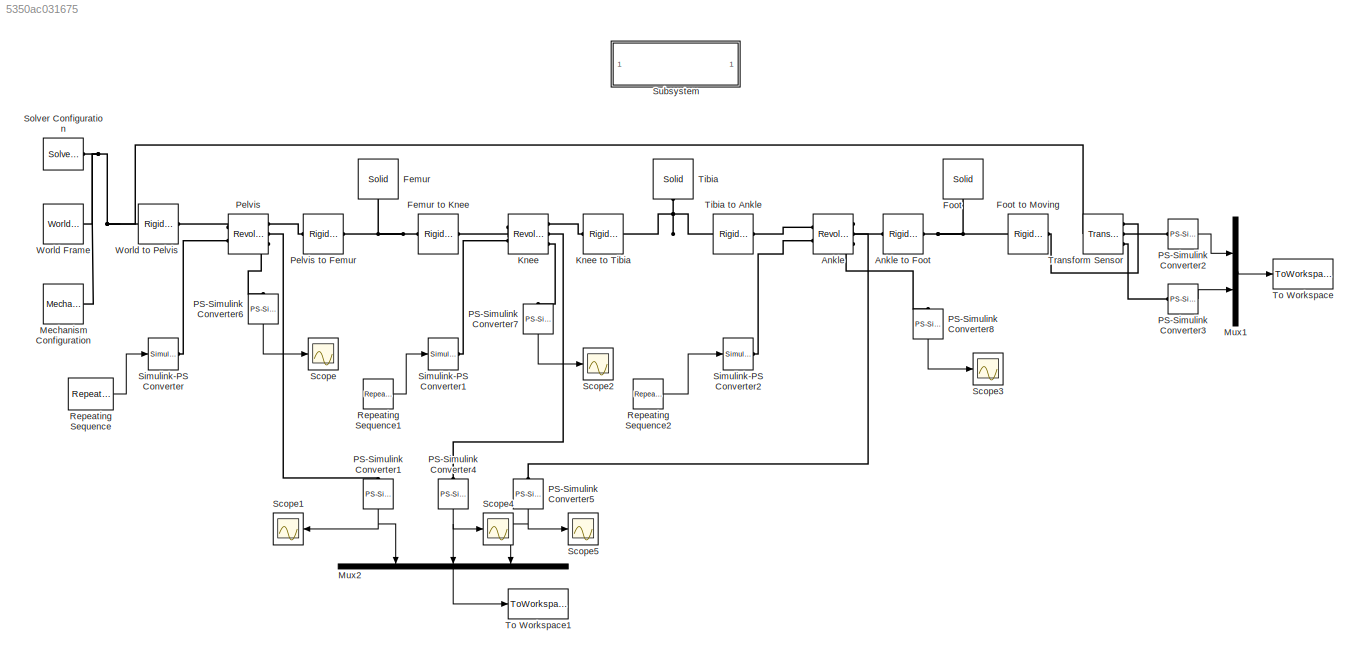
MODEL slx_5350ac031675
KIND model
CONFIG AbsTol = auto
CONFIG EnableMultiTasking = off
CONFIG FixedStep = auto
CONFIG MaxStep = auto
CONFIG MinStep = auto
CONFIG RelTol = 1e-3
CONFIG SampleTimeConstraint = Unconstrained
CONFIG Solver = VariableStepAuto
CONFIG SolverName = VariableStepAuto
CONFIG StartTime = 0.0
CONFIG StopTime = 10.0
BLOCK [Reference] Ankle  REF=sm_lib/Joints/Revolute Joint
  Ports = [0, 0, 0, 0, 0, 2, 3]
  SourceBlock = sm_lib/Joints/Revolute Joint
  SourceProductBaseCode = MS
  SourceProductName = Simscape Multibody
  SourceType = Revolute Joint
BLOCK [Reference] Ankle to Foot  REF=sm_lib/Frames and
Transforms/Rigid
Transform
  Ports = [0, 0, 0, 0, 0, 1, 1]
  SourceBlock = sm_lib/Frames and\nTransforms/Rigid\nTransform
  SourceProductBaseCode = MS
  SourceProductName = Simscape Multibody
  SourceType = Rigid\nTransform
BLOCK [Reference] Femur  REF=sm_lib/Body Elements/Solid
  Ports = [0, 0, 0, 0, 0, 0, 1]
  SourceBlock = sm_lib/Body Elements/Solid
  SourceProductBaseCode = MS
  SourceProductName = Simscape Multibody
  SourceType = Solid
BLOCK [Reference] Femur to Knee  REF=sm_lib/Frames and
Transforms/Rigid
Transform
  Ports = [0, 0, 0, 0, 0, 1, 1]
  SourceBlock = sm_lib/Frames and\nTransforms/Rigid\nTransform
  SourceProductBaseCode = MS
  SourceProductName = Simscape Multibody
  SourceType = Rigid\nTransform
BLOCK [Reference] Foot  REF=sm_lib/Body Elements/Solid
  Ports = [0, 0, 0, 0, 0, 0, 1]
  SourceBlock = sm_lib/Body Elements/Solid
  SourceProductBaseCode = MS
  SourceProductName = Simscape Multibody
  SourceType = Solid
BLOCK [Reference] Foot to Moving  REF=sm_lib/Frames and
Transforms/Rigid
Transform
  Ports = [0, 0, 0, 0, 0, 1, 1]
  SourceBlock = sm_lib/Frames and\nTransforms/Rigid\nTransform
  SourceProductBaseCode = MS
  SourceProductName = Simscape Multibody
  SourceType = Rigid\nTransform
BLOCK [Reference] Knee  REF=sm_lib/Joints/Revolute Joint
  Ports = [0, 0, 0, 0, 0, 2, 3]
  SourceBlock = sm_lib/Joints/Revolute Joint
  SourceProductBaseCode = MS
  SourceProductName = Simscape Multibody
  SourceType = Revolute Joint
BLOCK [Reference] Knee to Tibia  REF=sm_lib/Frames and
Transforms/Rigid
Transform
  Ports = [0, 0, 0, 0, 0, 1, 1]
  SourceBlock = sm_lib/Frames and\nTransforms/Rigid\nTransform
  SourceProductBaseCode = MS
  SourceProductName = Simscape Multibody
  SourceType = Rigid\nTransform
BLOCK [Reference] Mechanism Configuration  REF=sm_lib/Utilities/Mechanism
Configuration
  Ports = [0, 0, 0, 0, 0, 0, 1]
  SourceBlock = sm_lib/Utilities/Mechanism\nConfiguration
  SourceProductBaseCode = MS
  SourceProductName = Simscape Multibody
  SourceType = Mechanism\nConfiguration
BLOCK [Mux] Mux1
  DisplayOption = bar
  Inputs = 2
  Ports = [2, 1]
BLOCK [Mux] Mux2
  DisplayOption = bar
  Inputs = 3
  Ports = [3, 1]
BLOCK [Reference] PS-Simulink Converter1  REF=nesl_utility/PS-Simulink
Converter
  Ports = [0, 1, 0, 0, 0, 1]
  SourceBlock = nesl_utility/PS-Simulink\nConverter
  SourceProductBaseCode = SS
  SourceProductName = Simscape
  SourceType = PS-Simulink\nConverter
BLOCK [Reference] PS-Simulink Converter2  REF=nesl_utility/PS-Simulink
Converter
  Ports = [0, 1, 0, 0, 0, 1]
  SourceBlock = nesl_utility/PS-Simulink\nConverter
  SourceProductBaseCode = SS
  SourceProductName = Simscape
  SourceType = PS-Simulink\nConverter
BLOCK [Reference] PS-Simulink Converter3  REF=nesl_utility/PS-Simulink
Converter
  Ports = [0, 1, 0, 0, 0, 1]
  SourceBlock = nesl_utility/PS-Simulink\nConverter
  SourceProductBaseCode = SS
  SourceProductName = Simscape
  SourceType = PS-Simulink\nConverter
BLOCK [Reference] PS-Simulink Converter4  REF=nesl_utility/PS-Simulink
Converter
  Ports = [0, 1, 0, 0, 0, 1]
  SourceBlock = nesl_utility/PS-Simulink\nConverter
  SourceProductBaseCode = SS
  SourceProductName = Simscape
  SourceType = PS-Simulink\nConverter
BLOCK [Reference] PS-Simulink Converter5  REF=nesl_utility/PS-Simulink
Converter
  Ports = [0, 1, 0, 0, 0, 1]
  SourceBlock = nesl_utility/PS-Simulink\nConverter
  SourceProductBaseCode = SS
  SourceProductName = Simscape
  SourceType = PS-Simulink\nConverter
BLOCK [Reference] PS-Simulink Converter6  REF=nesl_utility/PS-Simulink
Converter
  Ports = [0, 1, 0, 0, 0, 1]
  SourceBlock = nesl_utility/PS-Simulink\nConverter
  SourceProductBaseCode = SS
  SourceProductName = Simscape
  SourceType = PS-Simulink\nConverter
BLOCK [Reference] PS-Simulink Converter7  REF=nesl_utility/PS-Simulink
Converter
  Ports = [0, 1, 0, 0, 0, 1]
  SourceBlock = nesl_utility/PS-Simulink\nConverter
  SourceProductBaseCode = SS
  SourceProductName = Simscape
  SourceType = PS-Simulink\nConverter
BLOCK [Reference] PS-Simulink Converter8  REF=nesl_utility/PS-Simulink
Converter
  Ports = [0, 1, 0, 0, 0, 1]
  SourceBlock = nesl_utility/PS-Simulink\nConverter
  SourceProductBaseCode = SS
  SourceProductName = Simscape
  SourceType = PS-Simulink\nConverter
BLOCK [Reference] Pelvis  REF=sm_lib/Joints/Revolute Joint
  Ports = [0, 0, 0, 0, 0, 2, 3]
  SourceBlock = sm_lib/Joints/Revolute Joint
  SourceProductBaseCode = MS
  SourceProductName = Simscape Multibody
  SourceType = Revolute Joint
BLOCK [Reference] Pelvis to Femur  REF=sm_lib/Frames and
Transforms/Rigid
Transform
  Ports = [0, 0, 0, 0, 0, 1, 1]
  SourceBlock = sm_lib/Frames and\nTransforms/Rigid\nTransform
  SourceProductBaseCode = MS
  SourceProductName = Simscape Multibody
  SourceType = Rigid\nTransform
BLOCK [Reference] Repeating Sequence  REF=simulink/Sources/Repeating
Sequence
  Ports = [0, 1]
  SourceBlock = simulink/Sources/Repeating\nSequence
  SourceProductBaseCode = SL
  SourceProductName = Simulink
  SourceType = Repeating table
BLOCK [Reference] Repeating Sequence1  REF=simulink/Sources/Repeating
Sequence
  Ports = [0, 1]
  SourceBlock = simulink/Sources/Repeating\nSequence
  SourceProductBaseCode = SL
  SourceProductName = Simulink
  SourceType = Repeating table
BLOCK [Reference] Repeating Sequence2  REF=simulink/Sources/Repeating
Sequence
  Ports = [0, 1]
  SourceBlock = simulink/Sources/Repeating\nSequence
  SourceProductBaseCode = SL
  SourceProductName = Simulink
  SourceType = Repeating table
BLOCK [Scope] Scope
  Floating = off
  NumInputPorts = 1
  Ports = [1]
  ScopeSpecificationString = Simulink.scopes.TimeScopeBlockCfg('CurrentConfiguration', extmgr.ConfigurationSet(extmgr.Configuration('Core','General UI',true),extmgr.Configuration('Core','Source UI',true),extmgr.Configuration('Sources','WiredSimulink',true),extmgr.Configuration('Visuals','Time Domain',true,'SerializedDisplays',{struct('MinYLimReal','-150441544.17008','MaxYLimReal','16815517.03619','YLabelReal','','MinYLimMag',...<+1486ch>
BLOCK [Scope] Scope1
  Floating = off
  NumInputPorts = 1
  Ports = [1]
  ScopeSpecificationString = Simulink.scopes.TimeScopeBlockCfg('CurrentConfiguration', extmgr.ConfigurationSet(extmgr.Configuration('Core','General UI',true),extmgr.Configuration('Core','Source UI',true),extmgr.Configuration('Sources','WiredSimulink',true,'DataLoggingVariableName','ScopeData1'),extmgr.Configuration('Visuals','Time Domain',true,'SerializedDisplays',{struct('MinYLimReal','-16815517.03619','MaxYLimReal','1504415...<+1468ch>
BLOCK [Scope] Scope2
  Floating = off
  NumInputPorts = 1
  Ports = [1]
  ScopeSpecificationString = Simulink.scopes.TimeScopeBlockCfg('CurrentConfiguration', extmgr.ConfigurationSet(extmgr.Configuration('Core','General UI',true),extmgr.Configuration('Core','Source UI',true),extmgr.Configuration('Sources','WiredSimulink',true,'DataLoggingVariableName','ScopeData2'),extmgr.Configuration('Visuals','Time Domain',true,'SerializedDisplays',{struct('MinYLimReal','-611378504.7371','MaxYLimReal','6798409...<+1521ch>
BLOCK [Scope] Scope3
  Floating = off
  NumInputPorts = 1
  Ports = [1]
  ScopeSpecificationString = Simulink.scopes.TimeScopeBlockCfg('CurrentConfiguration', extmgr.ConfigurationSet(extmgr.Configuration('Core','General UI',true),extmgr.Configuration('Core','Source UI',true),extmgr.Configuration('Sources','WiredSimulink',true,'DataLoggingVariableName','ScopeData3'),extmgr.Configuration('Visuals','Time Domain',true,'SerializedDisplays',{struct('MinYLimReal','-516698912.15701','MaxYLimReal','574302...<+1526ch>
BLOCK [Scope] Scope4
  Floating = off
  NumInputPorts = 1
  Ports = [1]
  ScopeSpecificationString = Simulink.scopes.TimeScopeBlockCfg('CurrentConfiguration', extmgr.ConfigurationSet(extmgr.Configuration('Core','General UI',true),extmgr.Configuration('Core','Source UI',true),extmgr.Configuration('Sources','WiredSimulink',true,'DataLoggingVariableName','ScopeData4'),extmgr.Configuration('Visuals','Time Domain',true,'SerializedDisplays',{struct('MinYLimReal','-67984099.47412','MaxYLimReal','6113785...<+1464ch>
BLOCK [Scope] Scope5
  Floating = off
  NumInputPorts = 1
  Ports = [1]
  ScopeSpecificationString = Simulink.scopes.TimeScopeBlockCfg('CurrentConfiguration', extmgr.ConfigurationSet(extmgr.Configuration('Core','General UI',true),extmgr.Configuration('Core','Source UI',true),extmgr.Configuration('Sources','WiredSimulink',true,'DataLoggingVariableName','ScopeData5'),extmgr.Configuration('Visuals','Time Domain',true,'SerializedDisplays',{struct('MinYLimReal','-57430255.04395','MaxYLimReal','5166989...<+1468ch>
BLOCK [Reference] Simulink-PS Converter  REF=nesl_utility/Simulink-PS
Converter
  Ports = [1, 0, 0, 0, 0, 0, 1]
  SourceBlock = nesl_utility/Simulink-PS\nConverter
  SourceProductBaseCode = SS
  SourceProductName = Simscape
  SourceType = Simulink-PS\nConverter
BLOCK [Reference] Simulink-PS Converter1  REF=nesl_utility/Simulink-PS
Converter
  Ports = [1, 0, 0, 0, 0, 0, 1]
  SourceBlock = nesl_utility/Simulink-PS\nConverter
  SourceProductBaseCode = SS
  SourceProductName = Simscape
  SourceType = Simulink-PS\nConverter
BLOCK [Reference] Simulink-PS Converter2  REF=nesl_utility/Simulink-PS
Converter
  Ports = [1, 0, 0, 0, 0, 0, 1]
  SourceBlock = nesl_utility/Simulink-PS\nConverter
  SourceProductBaseCode = SS
  SourceProductName = Simscape
  SourceType = Simulink-PS\nConverter
BLOCK [Reference] Solver Configuration  REF=nesl_utility/Solver
Configuration
  Ports = [0, 0, 0, 0, 0, 0, 1]
  SourceBlock = nesl_utility/Solver\nConfiguration
  SourceProductBaseCode = SS
  SourceProductName = Simscape
  SourceType = Solver\nConfiguration
BLOCK [SubSystem] Subsystem
  OpenFcn = open_system('sm_lib')
  Ports = []
  RequestExecContextInheritance = off
  ShowPortLabels = none
BLOCK [Reference] Tibia  REF=sm_lib/Body Elements/Solid
  Ports = [0, 0, 0, 0, 0, 0, 1]
  SourceBlock = sm_lib/Body Elements/Solid
  SourceProductBaseCode = MS
  SourceProductName = Simscape Multibody
  SourceType = Solid
BLOCK [Reference] Tibia to Ankle  REF=sm_lib/Frames and
Transforms/Rigid
Transform
  Ports = [0, 0, 0, 0, 0, 1, 1]
  SourceBlock = sm_lib/Frames and\nTransforms/Rigid\nTransform
  SourceProductBaseCode = MS
  SourceProductName = Simscape Multibody
  SourceType = Rigid\nTransform
BLOCK [ToWorkspace] To Workspace
  FixptAsFi = on
  MaxDataPoints = inf
  Ports = [1]
  SampleTime = -1
  Save2DSignal = 3-D array (concatenate along third dimension)
  SaveFormat = Timeseries
  VariableName = coupler_curve
BLOCK [ToWorkspace] To Workspace1
  FixptAsFi = on
  MaxDataPoints = inf
  Ports = [1]
  SampleTime = -1
  Save2DSignal = 3-D array (concatenate along third dimension)
  SaveFormat = Timeseries
  VariableName = torqueout
BLOCK [Reference] Transform Sensor  REF=sm_lib/Frames and
Transforms/Transform
Sensor
  Ports = [0, 0, 0, 0, 0, 1, 3]
  SourceBlock = sm_lib/Frames and\nTransforms/Transform\nSensor
  SourceProductBaseCode = MS
  SourceProductName = Simscape Multibody
  SourceType = Transform\nSensor
BLOCK [Reference] World Frame  REF=sm_lib/Frames and
Transforms/World Frame
  Ports = [0, 0, 0, 0, 0, 0, 1]
  SourceBlock = sm_lib/Frames and\nTransforms/World Frame
  SourceProductBaseCode = MS
  SourceProductName = Simscape Multibody
  SourceType = World Frame
BLOCK [Reference] World to Pelvis  REF=sm_lib/Frames and
Transforms/Rigid
Transform
  Ports = [0, 0, 0, 0, 0, 1, 1]
  SourceBlock = sm_lib/Frames and\nTransforms/Rigid\nTransform
  SourceProductBaseCode = MS
  SourceProductName = Simscape Multibody
  SourceType = Rigid\nTransform
LINE Mux1:1 -> To Workspace:1
LINE Mux2:1 -> To Workspace1:1
NET PS-Simulink Converter1:1 -> Mux2:1, Scope1:1
LINE PS-Simulink Converter2:1 -> Mux1:1
LINE PS-Simulink Converter3:1 -> Mux1:2
NET PS-Simulink Converter4:1 -> Mux2:2, Scope4:1
NET PS-Simulink Converter5:1 -> Mux2:3, Scope5:1
LINE PS-Simulink Converter6:1 -> Scope:1
LINE PS-Simulink Converter7:1 -> Scope2:1
LINE PS-Simulink Converter8:1 -> Scope3:1
LINE Repeating Sequence1:1 -> Simulink-PS Converter1:1
LINE Repeating Sequence2:1 -> Simulink-PS Converter2:1
LINE Repeating Sequence:1 -> Simulink-PS Converter:1
PLINE Ankle to Foot:LConn1 -- Ankle:RConn1
PNET net1: Ankle to Foot:RConn1 -- Foot to Moving:LConn1 -- Foot:RConn1
PLINE Ankle:LConn1 -- Tibia to Ankle:RConn1
PLINE Ankle:LConn2 -- Simulink-PS Converter2:RConn1
PLINE Ankle:RConn2 -- PS-Simulink Converter5:LConn1
PLINE Ankle:RConn3 -- PS-Simulink Converter8:LConn1
PNET net2: Femur to Knee:LConn1 -- Femur:RConn1 -- Pelvis to Femur:RConn1
PLINE Femur to Knee:RConn1 -- Knee:LConn1
PLINE Foot to Moving:RConn1 -- Transform Sensor:RConn1
PLINE Knee to Tibia:LConn1 -- Knee:RConn1
PNET net3: Knee to Tibia:RConn1 -- Tibia to Ankle:LConn1 -- Tibia:RConn1
PLINE Knee:LConn2 -- Simulink-PS Converter1:RConn1
PLINE Knee:RConn2 -- PS-Simulink Converter4:LConn1
PLINE Knee:RConn3 -- PS-Simulink Converter7:LConn1
PNET net4: Mechanism Configuration:RConn1 -- Solver Configuration:RConn1 -- Transform Sensor:LConn1 -- World Frame:RConn1 -- World to Pelvis:LConn1
PLINE PS-Simulink Converter1:LConn1 -- Pelvis:RConn2
PLINE PS-Simulink Converter2:LConn1 -- Transform Sensor:RConn2
PLINE PS-Simulink Converter3:LConn1 -- Transform Sensor:RConn3
PLINE PS-Simulink Converter6:LConn1 -- Pelvis:RConn3
PLINE Pelvis to Femur:LConn1 -- Pelvis:RConn1
PLINE Pelvis:LConn1 -- World to Pelvis:RConn1
PLINE Pelvis:LConn2 -- Simulink-PS Converter:RConn1
note: NET lines group one-source signal fan-out (src -> all destinations, sorted); 1:1 wires keep LINE; PNET lines group multi-terminal physical nets as a canonical sorted terminal list (undirected conserving connections); 2-terminal nets keep the pairwise PLINE form
